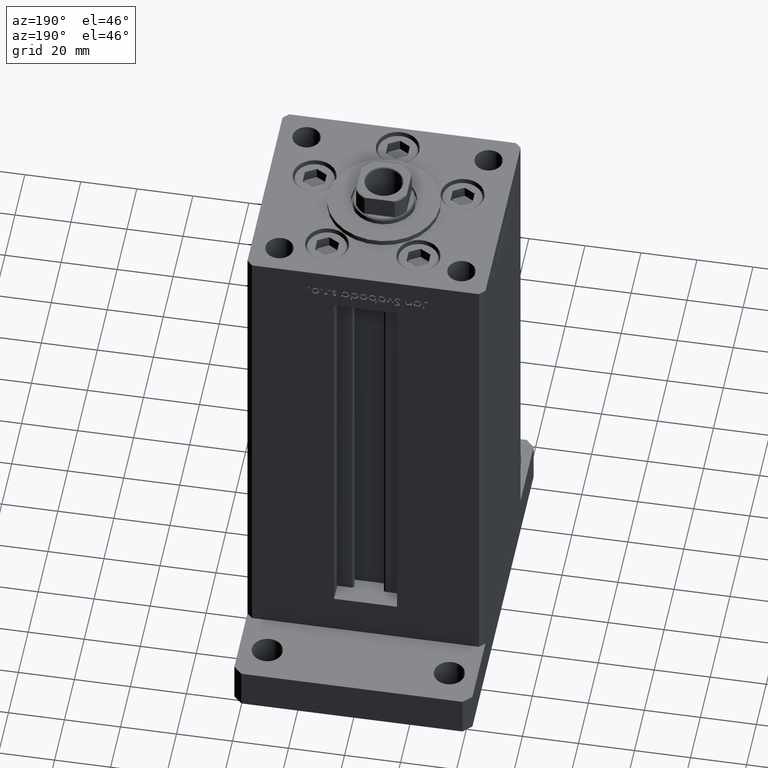
[diagram: clean part render]
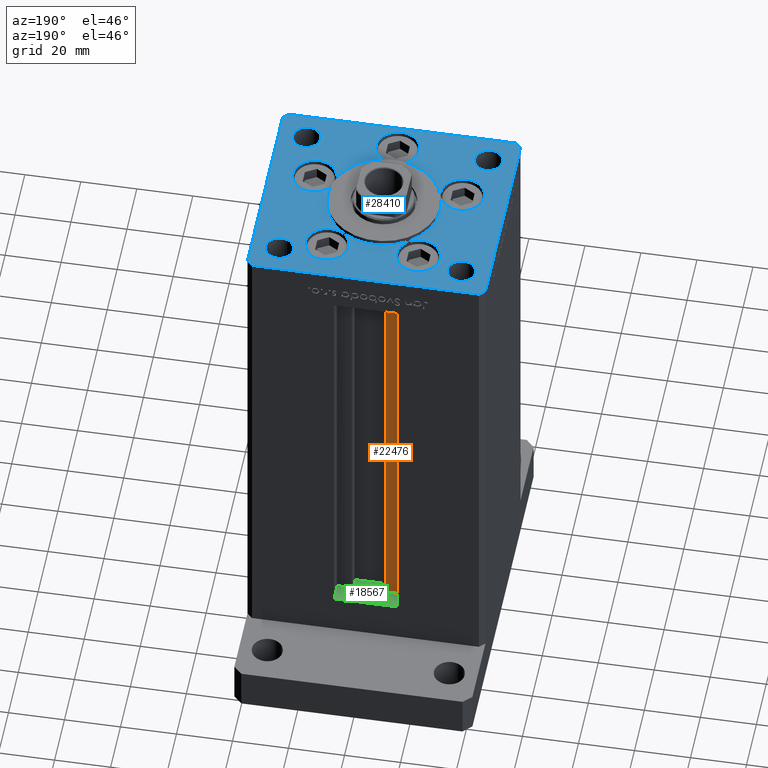
[diagram: same view with three faces highlighted in distinct colors, each labeled with its STEP entity id]
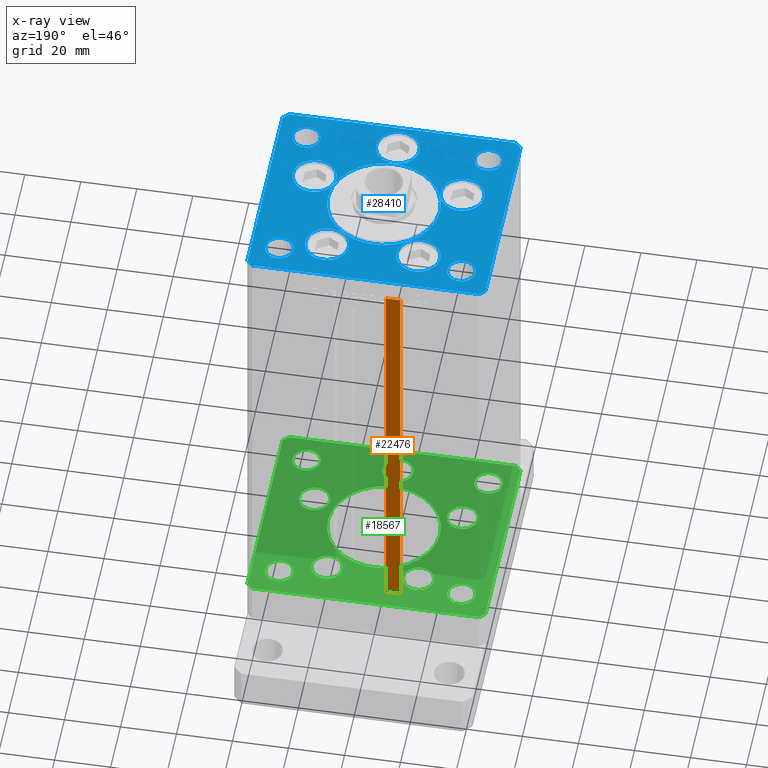
[diagram: x-ray of the same camera — body ghosted, the three highlighted faces saturated]
A machine part, auxiliary view with three faces highlighted in distinct colors.
The next image is the same camera in x-ray (body ghosted, the three faces saturated) — at least one of them is partly hidden behind the body in this view.
Their STEP definitions:

[orange] entity #22476 — the highlighted planar face has unit normal (0, -1, 0).
#835 = FACE_OUTER_BOUND ( 'NONE', #46362, .T. ) ;
#1094 = DIRECTION ( 'NONE',  ( 0.000000000000000000, 0.000000000000000000, -1.000000000000000000 ) ) ;
#2097 = DIRECTION ( 'NONE',  ( -0.000000000000000000, -0.000000000000000000, 1.000000000000000000 ) ) ;
#2497 = VECTOR ( 'NONE', #16606, 1000.000000000000000 ) ;
#3849 = EDGE_CURVE ( 'NONE', #27291, #21422, #7967, .T. ) ;
#4525 = CARTESIAN_POINT ( 'NONE',  ( -6.183333333333999704, 30.99999999999999289, 148.5000000000000000 ) ) ;
#5502 = VERTEX_POINT ( 'NONE', #45263 ) ;
#7967 = LINE ( 'NONE', #20645, #2497 ) ;
#8685 = CARTESIAN_POINT ( 'NONE',  ( -11.25000000000000000, 30.99999999999999289, 148.5000000000000000 ) ) ;
#8992 = LINE ( 'NONE', #41890, #36230 ) ;
#9378 = EDGE_CURVE ( 'NONE', #27291, #5502, #8992, .T. ) ;
#10717 = LINE ( 'NONE', #43079, #30172 ) ;
#16606 = DIRECTION ( 'NONE',  ( -0.000000000000000000, -0.000000000000000000, 1.000000000000000000 ) ) ;
#17851 = VECTOR ( 'NONE', #19787, 1000.000000000000000 ) ;
#19787 = DIRECTION ( 'NONE',  ( -1.000000000000000000, 0.000000000000000000, 0.000000000000000000 ) ) ;
#20645 = CARTESIAN_POINT ( 'NONE',  ( -11.25000000000000000, 30.99999999999999289, 0.000000000000000000 ) ) ;
#21422 = VERTEX_POINT ( 'NONE', #8685 ) ;
#21584 = CARTESIAN_POINT ( 'NONE',  ( -6.183333333333999704, 30.99999999999999289, 0.000000000000000000 ) ) ;
#22476 = ADVANCED_FACE ( 'NONE', ( #835 ), #29950, .F. ) ;
#22998 = ORIENTED_EDGE ( 'NONE', *, *, #47125, .F. ) ;
#24625 = LINE ( 'NONE', #48890, #17851 ) ;
#27291 = VERTEX_POINT ( 'NONE', #34514 ) ;
#28421 = ORIENTED_EDGE ( 'NONE', *, *, #33720, .F. ) ;
#29950 = PLANE ( 'NONE',  #34712 ) ;
#30172 = VECTOR ( 'NONE', #2097, 1000.000000000000000 ) ;
#33720 = EDGE_CURVE ( 'NONE', #35158, #21422, #24625, .T. ) ;
#33745 = DIRECTION ( 'NONE',  ( 0.000000000000000000, -1.000000000000000000, -0.000000000000000000 ) ) ;
#34514 = CARTESIAN_POINT ( 'NONE',  ( -11.25000000000000000, 30.99999999999999289, 0.000000000000000000 ) ) ;
#34712 = AXIS2_PLACEMENT_3D ( 'NONE', #21584, #33745, #1094 ) ;
#35158 = VERTEX_POINT ( 'NONE', #4525 ) ;
#36230 = VECTOR ( 'NONE', #50514, 1000.000000000000000 ) ;
#39250 = ORIENTED_EDGE ( 'NONE', *, *, #9378, .F. ) ;
#41300 = ORIENTED_EDGE ( 'NONE', *, *, #3849, .T. ) ;
#41890 = CARTESIAN_POINT ( 'NONE',  ( -6.183333333333999704, 30.99999999999999289, 0.000000000000000000 ) ) ;
#43079 = CARTESIAN_POINT ( 'NONE',  ( -6.183333333333999704, 30.99999999999999289, 0.000000000000000000 ) ) ;
#45263 = CARTESIAN_POINT ( 'NONE',  ( -6.183333333333999704, 30.99999999999999289, 0.000000000000000000 ) ) ;
#46362 = EDGE_LOOP ( 'NONE', ( #22998, #39250, #41300, #28421 ) ) ;
#47125 = EDGE_CURVE ( 'NONE', #5502, #35158, #10717, .T. ) ;
#48890 = CARTESIAN_POINT ( 'NONE',  ( 0.000000000000000000, 30.99999999999999289, 148.5000000000000000 ) ) ;
#50514 = DIRECTION ( 'NONE',  ( 1.000000000000000000, -0.000000000000000000, -0.000000000000000000 ) ) ;

[blue] entity #28410 — the highlighted planar face has unit normal (0, 0, 1).
#83 = EDGE_CURVE ( 'NONE', #5957, #25034, #34220, .T. ) ;
#97 = DIRECTION ( 'NONE',  ( 0.000000000000000000, 0.000000000000000000, 1.000000000000000000 ) ) ;
#128 = EDGE_CURVE ( 'NONE', #33916, #36391, #33102, .T. ) ;
#178 = FACE_BOUND ( 'NONE', #35177, .T. ) ;
#235 = DIRECTION ( 'NONE',  ( 1.000000000000000000, 0.000000000000000000, 0.000000000000000000 ) ) ;
#413 = DIRECTION ( 'NONE',  ( 1.000000000000000000, 0.000000000000000000, 0.000000000000000000 ) ) ;
#445 = FACE_BOUND ( 'NONE', #25544, .T. ) ;
#567 = VECTOR ( 'NONE', #46374, 1000.000000000000000 ) ;
#716 = FACE_BOUND ( 'NONE', #36961, .T. ) ;
#773 = EDGE_LOOP ( 'NONE', ( #14715, #3197 ) ) ;
#1286 = VERTEX_POINT ( 'NONE', #39361 ) ;
#1325 = CARTESIAN_POINT ( 'NONE',  ( 18.64865316429777664, -9.333333333333328596, 0.000000000000000000 ) ) ;
#1443 = CARTESIAN_POINT ( 'NONE',  ( -8.572913342905440715, 22.74999999999999289, 0.000000000000000000 ) ) ;
#1997 = CARTESIAN_POINT ( 'NONE',  ( -34.14865316429777664, -9.333333333333328596, 0.000000000000000000 ) ) ;
#2161 = ORIENTED_EDGE ( 'NONE', *, *, #49461, .F. ) ;
#2629 = EDGE_CURVE ( 'NONE', #34130, #30908, #11945, .T. ) ;
#2718 = VECTOR ( 'NONE', #28157, 1000.000000000000000 ) ;
#3119 = ORIENTED_EDGE ( 'NONE', *, *, #53276, .T. ) ;
#3197 = ORIENTED_EDGE ( 'NONE', *, *, #38219, .F. ) ;
#3304 = LINE ( 'NONE', #20018, #20281 ) ;
#3376 = DIRECTION ( 'NONE',  ( 0.000000000000000000, 0.000000000000000000, 1.000000000000000000 ) ) ;
#3524 = AXIS2_PLACEMENT_3D ( 'NONE', #28272, #44695, #33100 ) ;
#3686 = FACE_OUTER_BOUND ( 'NONE', #27632, .T. ) ;
#3825 = VERTEX_POINT ( 'NONE', #40617 ) ;
#4037 = EDGE_CURVE ( 'NONE', #16109, #43374, #9382, .T. ) ;
#4057 = AXIS2_PLACEMENT_3D ( 'NONE', #51006, #14064, #33056 ) ;
#4264 = ORIENTED_EDGE ( 'NONE', *, *, #4037, .F. ) ;
#4274 = DIRECTION ( 'NONE',  ( 0.000000000000000000, 0.000000000000000000, 1.000000000000000000 ) ) ;
#4371 = CIRCLE ( 'NONE', #3524, 5.000000000000000888 ) ;
#4399 = DIRECTION ( 'NONE',  ( 1.000000000000000000, 0.000000000000000000, 0.000000000000000000 ) ) ;
#4497 = DIRECTION ( 'NONE',  ( 0.7071067811865474617, 0.7071067811865474617, 0.000000000000000000 ) ) ;
#4620 = EDGE_CURVE ( 'NONE', #29550, #42673, #11130, .T. ) ;
#4751 = CARTESIAN_POINT ( 'NONE',  ( -42.50000000000000000, -35.50000000000004263, 0.000000000000000000 ) ) ;
#4767 = DIRECTION ( 'NONE',  ( 1.000000000000000000, 0.000000000000000000, 0.000000000000000000 ) ) ;
#5051 = DIRECTION ( 'NONE',  ( -0.7071067811865536790, -0.7071067811865414665, 0.000000000000000000 ) ) ;
#5080 = ORIENTED_EDGE ( 'NONE', *, *, #28700, .T. ) ;
#5287 = AXIS2_PLACEMENT_3D ( 'NONE', #8203, #24954, #12271 ) ;
#5297 = EDGE_CURVE ( 'NONE', #50561, #42218, #49042, .T. ) ;
#5431 = DIRECTION ( 'NONE',  ( -0.000000000000000000, -0.000000000000000000, -1.000000000000000000 ) ) ;
#5487 = EDGE_CURVE ( 'NONE', #16010, #39987, #32879, .T. ) ;
#5957 = VERTEX_POINT ( 'NONE', #1997 ) ;
#6057 = EDGE_LOOP ( 'NONE', ( #16229, #30840 ) ) ;
#6365 = CARTESIAN_POINT ( 'NONE',  ( -7.750000000000000000, -28.00000000000000000, 0.000000000000000000 ) ) ;
#6482 = AXIS2_PLACEMENT_3D ( 'NONE', #20394, #53291, #12318 ) ;
#6801 = ORIENTED_EDGE ( 'NONE', *, *, #34250, .T. ) ;
#6927 = DIRECTION ( 'NONE',  ( -0.000000000000000000, -0.000000000000000000, -1.000000000000000000 ) ) ;
#7382 = CIRCLE ( 'NONE', #9077, 4.999999999999997335 ) ;
#7410 = CIRCLE ( 'NONE', #37559, 7.750000000000000000 ) ;
#7431 = CARTESIAN_POINT ( 'NONE',  ( 16.32291334290544071, 22.74999999999999289, 0.000000000000000000 ) ) ;
#7904 = AXIS2_PLACEMENT_3D ( 'NONE', #39130, #5431, #26220 ) ;
#7984 = ORIENTED_EDGE ( 'NONE', *, *, #33008, .T. ) ;
#7990 = FACE_BOUND ( 'NONE', #6057, .T. ) ;
#8203 = CARTESIAN_POINT ( 'NONE',  ( -32.50000000000000000, -27.50000000000000355, 0.000000000000000000 ) ) ;
#8251 = FACE_BOUND ( 'NONE', #19655, .T. ) ;
#8383 = AXIS2_PLACEMENT_3D ( 'NONE', #29062, #28535, #4767 ) ;
#8525 = LINE ( 'NONE', #4751, #21131 ) ;
#8737 = DIRECTION ( 'NONE',  ( -0.000000000000000000, -0.000000000000000000, -1.000000000000000000 ) ) ;
#9077 = AXIS2_PLACEMENT_3D ( 'NONE', #52958, #8737, #20330 ) ;
#9175 = EDGE_CURVE ( 'NONE', #14220, #43221, #49157, .T. ) ;
#9205 = CARTESIAN_POINT ( 'NONE',  ( -18.64865316429777664, -9.333333333333330373, 0.000000000000000000 ) ) ;
#9214 = CIRCLE ( 'NONE', #4057, 20.00000000000000000 ) ;
#9322 = CARTESIAN_POINT ( 'NONE',  ( -20.00000000000000000, -6.938893903907228378E-15, 0.000000000000000000 ) ) ;
#9382 = CIRCLE ( 'NONE', #25785, 7.750000000000000000 ) ;
#10322 = DIRECTION ( 'NONE',  ( 1.000000000000000000, 0.000000000000000000, 0.000000000000000000 ) ) ;
#10523 = CARTESIAN_POINT ( 'NONE',  ( -27.50000000000000000, 27.50000000000000711, 0.000000000000000000 ) ) ;
#10547 = CARTESIAN_POINT ( 'NONE',  ( 26.39865316429777664, -9.333333333333330373, 0.000000000000000000 ) ) ;
#11130 = CIRCLE ( 'NONE', #44734, 4.999999999999997335 ) ;
#11296 = ORIENTED_EDGE ( 'NONE', *, *, #28404, .T. ) ;
#11474 = CARTESIAN_POINT ( 'NONE',  ( 0.000000000000000000, -6.938893903907228378E-15, 0.000000000000000000 ) ) ;
#11945 = CIRCLE ( 'NONE', #17935, 7.750000000000000000 ) ;
#12119 = ORIENTED_EDGE ( 'NONE', *, *, #46850, .T. ) ;
#12212 = EDGE_CURVE ( 'NONE', #14063, #44067, #50094, .T. ) ;
#12271 = DIRECTION ( 'NONE',  ( 1.000000000000000000, 0.000000000000000000, 0.000000000000000000 ) ) ;
#12318 = DIRECTION ( 'NONE',  ( 1.000000000000000000, 0.000000000000000000, 0.000000000000000000 ) ) ;
#12440 = CARTESIAN_POINT ( 'NONE',  ( 16.32291334290544071, 22.74999999999999289, 0.000000000000000000 ) ) ;
#12919 = ORIENTED_EDGE ( 'NONE', *, *, #12212, .T. ) ;
#13656 = AXIS2_PLACEMENT_3D ( 'NONE', #17564, #17296, #34014 ) ;
#13671 = CARTESIAN_POINT ( 'NONE',  ( -42.50000000000000711, 35.50000000000000000, 0.000000000000000000 ) ) ;
#13801 = DIRECTION ( 'NONE',  ( 1.000000000000000000, 0.000000000000000000, 0.000000000000000000 ) ) ;
#14063 = VERTEX_POINT ( 'NONE', #36017 ) ;
#14064 = DIRECTION ( 'NONE',  ( 0.000000000000000000, 0.000000000000000000, 1.000000000000000000 ) ) ;
#14220 = VERTEX_POINT ( 'NONE', #1443 ) ;
#14262 = CARTESIAN_POINT ( 'NONE',  ( 32.50000000000000000, 27.49999999999999645, 0.000000000000000000 ) ) ;
#14715 = ORIENTED_EDGE ( 'NONE', *, *, #5297, .F. ) ;
#14746 = CARTESIAN_POINT ( 'NONE',  ( -42.50000000000000000, -35.50000000000004263, 0.000000000000000000 ) ) ;
#15189 = CARTESIAN_POINT ( 'NONE',  ( -24.07291334290544071, 22.74999999999999289, 0.000000000000000000 ) ) ;
#15692 = VERTEX_POINT ( 'NONE', #46102 ) ;
#15848 = CARTESIAN_POINT ( 'NONE',  ( 20.00000000000000000, -4.489600305612522259E-15, 0.000000000000000000 ) ) ;
#16002 = CARTESIAN_POINT ( 'NONE',  ( -27.50000000000000000, -27.50000000000000355, 0.000000000000000000 ) ) ;
#16010 = VERTEX_POINT ( 'NONE', #13671 ) ;
#16049 = CARTESIAN_POINT ( 'NONE',  ( -40.50000000000000000, 37.49999999999997158, 0.000000000000000000 ) ) ;
#16109 = VERTEX_POINT ( 'NONE', #6365 ) ;
#16123 = CIRCLE ( 'NONE', #42821, 7.750000000000000000 ) ;
#16229 = ORIENTED_EDGE ( 'NONE', *, *, #9175, .F. ) ;
#16306 = DIRECTION ( 'NONE',  ( 1.000000000000000000, 0.000000000000000000, 0.000000000000000000 ) ) ;
#17069 = EDGE_CURVE ( 'NONE', #25034, #5957, #37176, .T. ) ;
#17106 = CARTESIAN_POINT ( 'NONE',  ( 37.50000000000000000, 27.49999999999999645, 0.000000000000000000 ) ) ;
#17141 = EDGE_LOOP ( 'NONE', ( #33545, #4264 ) ) ;
#17296 = DIRECTION ( 'NONE',  ( 0.000000000000000000, 0.000000000000000000, 1.000000000000000000 ) ) ;
#17564 = CARTESIAN_POINT ( 'NONE',  ( 0.000000000000000000, -28.00000000000000000, 0.000000000000000000 ) ) ;
#17935 = AXIS2_PLACEMENT_3D ( 'NONE', #21940, #26797, #10322 ) ;
#18289 = CARTESIAN_POINT ( 'NONE',  ( -26.39865316429777664, -9.333333333333330373, 0.000000000000000000 ) ) ;
#19069 = DIRECTION ( 'NONE',  ( -1.000000000000000000, 0.000000000000000000, 0.000000000000000000 ) ) ;
#19603 = ORIENTED_EDGE ( 'NONE', *, *, #5487, .T. ) ;
#19655 = EDGE_LOOP ( 'NONE', ( #2161, #47193 ) ) ;
#20018 = CARTESIAN_POINT ( 'NONE',  ( 42.50000000000000711, -35.49999999999992895, 0.000000000000000000 ) ) ;
#20145 = FACE_BOUND ( 'NONE', #17141, .T. ) ;
#20281 = VECTOR ( 'NONE', #32177, 1000.000000000000000 ) ;
#20330 = DIRECTION ( 'NONE',  ( -1.000000000000000000, 0.000000000000000000, 0.000000000000000000 ) ) ;
#20394 = CARTESIAN_POINT ( 'NONE',  ( 0.000000000000000000, 0.000000000000000000, 0.000000000000000000 ) ) ;
#20409 = EDGE_LOOP ( 'NONE', ( #50788, #39104 ) ) ;
#20456 = CARTESIAN_POINT ( 'NONE',  ( -16.32291334290544071, 22.74999999999999289, 0.000000000000000000 ) ) ;
#20460 = AXIS2_PLACEMENT_3D ( 'NONE', #14262, #40147, #35027 ) ;
#20828 = CARTESIAN_POINT ( 'NONE',  ( 7.750000000000000000, -28.00000000000000000, 0.000000000000000000 ) ) ;
#20829 = AXIS2_PLACEMENT_3D ( 'NONE', #18289, #34736, #51179 ) ;
#20974 = LINE ( 'NONE', #24498, #50569 ) ;
#21131 = VECTOR ( 'NONE', #37114, 1000.000000000000000 ) ;
#21735 = CARTESIAN_POINT ( 'NONE',  ( 40.50000000000000711, 37.50000000000000711, 0.000000000000000000 ) ) ;
#21821 = ORIENTED_EDGE ( 'NONE', *, *, #44598, .F. ) ;
#21940 = CARTESIAN_POINT ( 'NONE',  ( 26.39865316429777664, -9.333333333333330373, 0.000000000000000000 ) ) ;
#22958 = DIRECTION ( 'NONE',  ( 0.000000000000000000, 0.000000000000000000, 1.000000000000000000 ) ) ;
#23125 = CARTESIAN_POINT ( 'NONE',  ( -32.50000000000000000, 27.50000000000000711, 0.000000000000000000 ) ) ;
#23853 = CARTESIAN_POINT ( 'NONE',  ( 0.000000000000000000, -28.00000000000000000, 0.000000000000000000 ) ) ;
#24169 = DIRECTION ( 'NONE',  ( 1.000000000000000000, 0.000000000000000000, 0.000000000000000000 ) ) ;
#24498 = CARTESIAN_POINT ( 'NONE',  ( -40.50000000000000000, 37.49999999999997158, 0.000000000000000000 ) ) ;
#24510 = DIRECTION ( 'NONE',  ( 1.000000000000000000, 0.000000000000000000, 0.000000000000000000 ) ) ;
#24954 = DIRECTION ( 'NONE',  ( 0.000000000000000000, 0.000000000000000000, 1.000000000000000000 ) ) ;
#25034 = VERTEX_POINT ( 'NONE', #9205 ) ;
#25325 = EDGE_LOOP ( 'NONE', ( #12119, #12919 ) ) ;
#25544 = EDGE_LOOP ( 'NONE', ( #30672, #51716 ) ) ;
#25785 = AXIS2_PLACEMENT_3D ( 'NONE', #23853, #97, #4399 ) ;
#26220 = DIRECTION ( 'NONE',  ( -1.000000000000000000, 0.000000000000000000, 0.000000000000000000 ) ) ;
#26499 = VERTEX_POINT ( 'NONE', #16002 ) ;
#26744 = DIRECTION ( 'NONE',  ( -1.000000000000000000, -4.283267841918041508E-16, 0.000000000000000000 ) ) ;
#26766 = AXIS2_PLACEMENT_3D ( 'NONE', #20456, #4274, #235 ) ;
#26797 = DIRECTION ( 'NONE',  ( 0.000000000000000000, 0.000000000000000000, 1.000000000000000000 ) ) ;
#27378 = CIRCLE ( 'NONE', #20460, 4.999999999999997335 ) ;
#27632 = EDGE_LOOP ( 'NONE', ( #11296, #3119, #34311, #38707, #47128, #7984, #6801, #19603 ) ) ;
#28157 = DIRECTION ( 'NONE',  ( -0.7071067811865524577, 0.7071067811865426878, 0.000000000000000000 ) ) ;
#28272 = CARTESIAN_POINT ( 'NONE',  ( -32.50000000000000000, -27.50000000000000355, 0.000000000000000000 ) ) ;
#28404 = EDGE_CURVE ( 'NONE', #39987, #15692, #8525, .T. ) ;
#28410 = ADVANCED_FACE ( 'NONE', ( #716, #7990, #40642, #53020, #20145, #445, #28516, #44947, #8251, #3686, #178 ), #36844, .T. ) ;
#28468 = VERTEX_POINT ( 'NONE', #21735 ) ;
#28516 = FACE_BOUND ( 'NONE', #25325, .T. ) ;
#28535 = DIRECTION ( 'NONE',  ( 0.000000000000000000, 0.000000000000000000, 1.000000000000000000 ) ) ;
#28700 = EDGE_CURVE ( 'NONE', #47638, #1286, #7382, .T. ) ;
#28987 = EDGE_CURVE ( 'NONE', #36391, #3825, #3304, .T. ) ;
#29062 = CARTESIAN_POINT ( 'NONE',  ( -26.39865316429777664, -9.333333333333330373, 0.000000000000000000 ) ) ;
#29550 = VERTEX_POINT ( 'NONE', #17106 ) ;
#29920 = VECTOR ( 'NONE', #4497, 1000.000000000000114 ) ;
#29995 = LINE ( 'NONE', #47491, #43644 ) ;
#30672 = ORIENTED_EDGE ( 'NONE', *, *, #17069, .F. ) ;
#30840 = ORIENTED_EDGE ( 'NONE', *, *, #52612, .F. ) ;
#30908 = VERTEX_POINT ( 'NONE', #51826 ) ;
#31404 = CARTESIAN_POINT ( 'NONE',  ( -37.50000000000000711, -27.50000000000000355, 0.000000000000000000 ) ) ;
#32177 = DIRECTION ( 'NONE',  ( 9.773090005503145261E-17, 1.000000000000000000, 0.000000000000000000 ) ) ;
#32364 = CARTESIAN_POINT ( 'NONE',  ( -32.50000000000000000, 27.50000000000000711, 0.000000000000000000 ) ) ;
#32879 = LINE ( 'NONE', #44741, #40425 ) ;
#33008 = EDGE_CURVE ( 'NONE', #28468, #45616, #29995, .T. ) ;
#33056 = DIRECTION ( 'NONE',  ( 1.000000000000000000, 0.000000000000000000, 0.000000000000000000 ) ) ;
#33100 = DIRECTION ( 'NONE',  ( 1.000000000000000000, 0.000000000000000000, 0.000000000000000000 ) ) ;
#33102 = LINE ( 'NONE', #53306, #29920 ) ;
#33545 = ORIENTED_EDGE ( 'NONE', *, *, #41423, .F. ) ;
#33916 = VERTEX_POINT ( 'NONE', #42641 ) ;
#33958 = EDGE_CURVE ( 'NONE', #30908, #34130, #16123, .T. ) ;
#34014 = DIRECTION ( 'NONE',  ( 1.000000000000000000, 0.000000000000000000, 0.000000000000000000 ) ) ;
#34130 = VERTEX_POINT ( 'NONE', #1325 ) ;
#34220 = CIRCLE ( 'NONE', #8383, 7.750000000000000000 ) ;
#34250 = EDGE_CURVE ( 'NONE', #45616, #16010, #20974, .T. ) ;
#34311 = ORIENTED_EDGE ( 'NONE', *, *, #128, .T. ) ;
#34474 = AXIS2_PLACEMENT_3D ( 'NONE', #32364, #48071, #52579 ) ;
#34549 = CIRCLE ( 'NONE', #5287, 5.000000000000000888 ) ;
#34600 = AXIS2_PLACEMENT_3D ( 'NONE', #23125, #6927, #19069 ) ;
#34736 = DIRECTION ( 'NONE',  ( 0.000000000000000000, 0.000000000000000000, 1.000000000000000000 ) ) ;
#35027 = DIRECTION ( 'NONE',  ( 1.000000000000000000, 0.000000000000000000, 0.000000000000000000 ) ) ;
#35177 = EDGE_LOOP ( 'NONE', ( #5080, #41388 ) ) ;
#35667 = CARTESIAN_POINT ( 'NONE',  ( 8.572913342905442491, 22.74999999999999289, 0.000000000000000000 ) ) ;
#36017 = CARTESIAN_POINT ( 'NONE',  ( -37.50000000000000711, 27.50000000000000711, 0.000000000000000000 ) ) ;
#36140 = AXIS2_PLACEMENT_3D ( 'NONE', #11474, #3376, #16306 ) ;
#36225 = CARTESIAN_POINT ( 'NONE',  ( 42.50000000000001421, 35.50000000000002132, 0.000000000000000000 ) ) ;
#36391 = VERTEX_POINT ( 'NONE', #37111 ) ;
#36636 = CARTESIAN_POINT ( 'NONE',  ( 32.50000000000000000, 27.49999999999999645, 0.000000000000000000 ) ) ;
#36844 = PLANE ( 'NONE',  #6482 ) ;
#36897 = DIRECTION ( 'NONE',  ( 0.000000000000000000, 0.000000000000000000, 1.000000000000000000 ) ) ;
#36961 = EDGE_LOOP ( 'NONE', ( #39356, #21821 ) ) ;
#37106 = VERTEX_POINT ( 'NONE', #15848 ) ;
#37111 = CARTESIAN_POINT ( 'NONE',  ( 42.50000000000000711, -35.49999999999992895, 0.000000000000000000 ) ) ;
#37114 = DIRECTION ( 'NONE',  ( 0.7071067811865487940, -0.7071067811865463515, 0.000000000000000000 ) ) ;
#37176 = CIRCLE ( 'NONE', #20829, 7.750000000000000000 ) ;
#37349 = DIRECTION ( 'NONE',  ( 0.000000000000000000, 0.000000000000000000, 1.000000000000000000 ) ) ;
#37433 = ORIENTED_EDGE ( 'NONE', *, *, #2629, .F. ) ;
#37559 = AXIS2_PLACEMENT_3D ( 'NONE', #41397, #37349, #413 ) ;
#38219 = EDGE_CURVE ( 'NONE', #42218, #50561, #44531, .T. ) ;
#38422 = EDGE_CURVE ( 'NONE', #41714, #37106, #9214, .T. ) ;
#38534 = LINE ( 'NONE', #42059, #567 ) ;
#38707 = ORIENTED_EDGE ( 'NONE', *, *, #28987, .T. ) ;
#38844 = EDGE_CURVE ( 'NONE', #42673, #29550, #27378, .T. ) ;
#39104 = ORIENTED_EDGE ( 'NONE', *, *, #38844, .F. ) ;
#39130 = CARTESIAN_POINT ( 'NONE',  ( 32.50000000000000000, -27.50000000000000355, 0.000000000000000000 ) ) ;
#39356 = ORIENTED_EDGE ( 'NONE', *, *, #38422, .F. ) ;
#39361 = CARTESIAN_POINT ( 'NONE',  ( 27.50000000000000355, -27.50000000000000355, 0.000000000000000000 ) ) ;
#39642 = CIRCLE ( 'NONE', #34474, 5.000000000000004441 ) ;
#39987 = VERTEX_POINT ( 'NONE', #14746 ) ;
#40147 = DIRECTION ( 'NONE',  ( 0.000000000000000000, 0.000000000000000000, 1.000000000000000000 ) ) ;
#40425 = VECTOR ( 'NONE', #48271, 1000.000000000000000 ) ;
#40617 = CARTESIAN_POINT ( 'NONE',  ( 42.50000000000001421, 35.50000000000002132, 0.000000000000000000 ) ) ;
#40639 = CIRCLE ( 'NONE', #7904, 4.999999999999997335 ) ;
#40642 = FACE_BOUND ( 'NONE', #773, .T. ) ;
#40755 = DIRECTION ( 'NONE',  ( 1.000000000000000000, 0.000000000000000000, 0.000000000000000000 ) ) ;
#41292 = DIRECTION ( 'NONE',  ( 0.000000000000000000, 0.000000000000000000, 1.000000000000000000 ) ) ;
#41388 = ORIENTED_EDGE ( 'NONE', *, *, #50592, .T. ) ;
#41397 = CARTESIAN_POINT ( 'NONE',  ( -16.32291334290544071, 22.74999999999999289, 0.000000000000000000 ) ) ;
#41423 = EDGE_CURVE ( 'NONE', #43374, #16109, #47176, .T. ) ;
#41714 = VERTEX_POINT ( 'NONE', #9322 ) ;
#42059 = CARTESIAN_POINT ( 'NONE',  ( -40.50000000000000711, -37.50000000000003553, 0.000000000000000000 ) ) ;
#42218 = VERTEX_POINT ( 'NONE', #35667 ) ;
#42641 = CARTESIAN_POINT ( 'NONE',  ( 40.50000000000001421, -37.49999999999992184, 0.000000000000000000 ) ) ;
#42673 = VERTEX_POINT ( 'NONE', #48289 ) ;
#42821 = AXIS2_PLACEMENT_3D ( 'NONE', #10547, #22958, #13801 ) ;
#43221 = VERTEX_POINT ( 'NONE', #15189 ) ;
#43374 = VERTEX_POINT ( 'NONE', #20828 ) ;
#43644 = VECTOR ( 'NONE', #26744, 1000.000000000000000 ) ;
#43663 = EDGE_LOOP ( 'NONE', ( #47542, #37433 ) ) ;
#44067 = VERTEX_POINT ( 'NONE', #10523 ) ;
#44325 = LINE ( 'NONE', #36225, #2718 ) ;
#44531 = CIRCLE ( 'NONE', #51401, 7.750000000000000000 ) ;
#44598 = EDGE_CURVE ( 'NONE', #37106, #41714, #45610, .T. ) ;
#44695 = DIRECTION ( 'NONE',  ( 0.000000000000000000, 0.000000000000000000, 1.000000000000000000 ) ) ;
#44734 = AXIS2_PLACEMENT_3D ( 'NONE', #36636, #36897, #24510 ) ;
#44741 = CARTESIAN_POINT ( 'NONE',  ( -42.50000000000000711, 35.50000000000000000, 0.000000000000000000 ) ) ;
#44947 = FACE_BOUND ( 'NONE', #20409, .T. ) ;
#45610 = CIRCLE ( 'NONE', #36140, 20.00000000000000000 ) ;
#45616 = VERTEX_POINT ( 'NONE', #16049 ) ;
#46102 = CARTESIAN_POINT ( 'NONE',  ( -40.50000000000000711, -37.50000000000003553, 0.000000000000000000 ) ) ;
#46374 = DIRECTION ( 'NONE',  ( 1.000000000000000000, 1.370645709413773283E-15, 0.000000000000000000 ) ) ;
#46850 = EDGE_CURVE ( 'NONE', #44067, #14063, #39642, .T. ) ;
#47128 = ORIENTED_EDGE ( 'NONE', *, *, #50489, .T. ) ;
#47176 = CIRCLE ( 'NONE', #13656, 7.750000000000000000 ) ;
#47193 = ORIENTED_EDGE ( 'NONE', *, *, #48172, .F. ) ;
#47310 = AXIS2_PLACEMENT_3D ( 'NONE', #12440, #41292, #40755 ) ;
#47491 = CARTESIAN_POINT ( 'NONE',  ( 40.50000000000000711, 37.50000000000000711, 0.000000000000000000 ) ) ;
#47542 = ORIENTED_EDGE ( 'NONE', *, *, #33958, .F. ) ;
#47638 = VERTEX_POINT ( 'NONE', #49462 ) ;
#48071 = DIRECTION ( 'NONE',  ( -0.000000000000000000, -0.000000000000000000, -1.000000000000000000 ) ) ;
#48172 = EDGE_CURVE ( 'NONE', #52775, #26499, #4371, .T. ) ;
#48271 = DIRECTION ( 'NONE',  ( 9.773090005503134168E-17, -1.000000000000000000, 0.000000000000000000 ) ) ;
#48289 = CARTESIAN_POINT ( 'NONE',  ( 27.50000000000000355, 27.49999999999999645, 0.000000000000000000 ) ) ;
#48699 = DIRECTION ( 'NONE',  ( 0.000000000000000000, 0.000000000000000000, 1.000000000000000000 ) ) ;
#49042 = CIRCLE ( 'NONE', #47310, 7.750000000000000000 ) ;
#49157 = CIRCLE ( 'NONE', #26766, 7.750000000000000000 ) ;
#49461 = EDGE_CURVE ( 'NONE', #26499, #52775, #34549, .T. ) ;
#49462 = CARTESIAN_POINT ( 'NONE',  ( 37.50000000000000000, -27.50000000000000355, 0.000000000000000000 ) ) ;
#49687 = CARTESIAN_POINT ( 'NONE',  ( 24.07291334290544071, 22.74999999999999289, 0.000000000000000000 ) ) ;
#50094 = CIRCLE ( 'NONE', #34600, 5.000000000000004441 ) ;
#50489 = EDGE_CURVE ( 'NONE', #3825, #28468, #44325, .T. ) ;
#50561 = VERTEX_POINT ( 'NONE', #49687 ) ;
#50569 = VECTOR ( 'NONE', #5051, 1000.000000000000000 ) ;
#50592 = EDGE_CURVE ( 'NONE', #1286, #47638, #40639, .T. ) ;
#50788 = ORIENTED_EDGE ( 'NONE', *, *, #4620, .F. ) ;
#51006 = CARTESIAN_POINT ( 'NONE',  ( 0.000000000000000000, -6.938893903907228378E-15, 0.000000000000000000 ) ) ;
#51179 = DIRECTION ( 'NONE',  ( 1.000000000000000000, 0.000000000000000000, 0.000000000000000000 ) ) ;
#51401 = AXIS2_PLACEMENT_3D ( 'NONE', #7431, #48699, #24169 ) ;
#51716 = ORIENTED_EDGE ( 'NONE', *, *, #83, .F. ) ;
#51826 = CARTESIAN_POINT ( 'NONE',  ( 34.14865316429777664, -9.333333333333330373, 0.000000000000000000 ) ) ;
#52579 = DIRECTION ( 'NONE',  ( -1.000000000000000000, 0.000000000000000000, 0.000000000000000000 ) ) ;
#52612 = EDGE_CURVE ( 'NONE', #43221, #14220, #7410, .T. ) ;
#52775 = VERTEX_POINT ( 'NONE', #31404 ) ;
#52958 = CARTESIAN_POINT ( 'NONE',  ( 32.50000000000000000, -27.50000000000000355, 0.000000000000000000 ) ) ;
#53020 = FACE_BOUND ( 'NONE', #43663, .T. ) ;
#53276 = EDGE_CURVE ( 'NONE', #15692, #33916, #38534, .T. ) ;
#53291 = DIRECTION ( 'NONE',  ( -0.000000000000000000, 0.000000000000000000, 1.000000000000000000 ) ) ;
#53306 = CARTESIAN_POINT ( 'NONE',  ( 40.50000000000001421, -37.49999999999992184, 0.000000000000000000 ) ) ;

[green] entity #18567 — the highlighted planar face has unit normal (0, 0, -1).
#88 = DIRECTION ( 'NONE',  ( -1.000000000000000000, 0.000000000000000000, 0.000000000000000000 ) ) ;
#204 = VERTEX_POINT ( 'NONE', #50083 ) ;
#389 = ORIENTED_EDGE ( 'NONE', *, *, #31006, .F. ) ;
#522 = CARTESIAN_POINT ( 'NONE',  ( -16.32291334290543006, 22.74999999999999645, -15.00000000000000000 ) ) ;
#619 = DIRECTION ( 'NONE',  ( 0.000000000000000000, -0.000000000000000000, -1.000000000000000000 ) ) ;
#724 = EDGE_CURVE ( 'NONE', #3373, #22227, #13018, .T. ) ;
#864 = CARTESIAN_POINT ( 'NONE',  ( 32.50000000000000000, -27.49999999999999645, -15.00000000000000000 ) ) ;
#1130 = CARTESIAN_POINT ( 'NONE',  ( 42.49999999999992895, 35.50000000000000000, -15.00000000000000000 ) ) ;
#1156 = AXIS2_PLACEMENT_3D ( 'NONE', #7235, #28547, #44197 ) ;
#1660 = CARTESIAN_POINT ( 'NONE',  ( -32.50000000000000000, 27.50000000000000355, -15.00000000000000000 ) ) ;
#1778 = VERTEX_POINT ( 'NONE', #40768 ) ;
#1815 = ORIENTED_EDGE ( 'NONE', *, *, #2069, .T. ) ;
#2069 = EDGE_CURVE ( 'NONE', #9620, #35711, #18826, .T. ) ;
#2085 = DIRECTION ( 'NONE',  ( 0.000000000000000000, -0.000000000000000000, -1.000000000000000000 ) ) ;
#2474 = VERTEX_POINT ( 'NONE', #48155 ) ;
#2908 = ORIENTED_EDGE ( 'NONE', *, *, #38596, .F. ) ;
#3306 = CIRCLE ( 'NONE', #6717, 5.499999999999998224 ) ;
#3373 = VERTEX_POINT ( 'NONE', #31338 ) ;
#3850 = EDGE_CURVE ( 'NONE', #44213, #44351, #32666, .T. ) ;
#4074 = VERTEX_POINT ( 'NONE', #53204 ) ;
#4090 = ORIENTED_EDGE ( 'NONE', *, *, #52970, .F. ) ;
#4834 = CIRCLE ( 'NONE', #51325, 5.499999999999998224 ) ;
#4838 = AXIS2_PLACEMENT_3D ( 'NONE', #33622, #33349, #33080 ) ;
#4988 = EDGE_CURVE ( 'NONE', #10072, #14410, #30961, .T. ) ;
#5161 = VERTEX_POINT ( 'NONE', #21125 ) ;
#5432 = EDGE_LOOP ( 'NONE', ( #29574, #30940 ) ) ;
#5443 = CARTESIAN_POINT ( 'NONE',  ( 42.50000000000000711, -35.50000000000000000, -15.00000000000000000 ) ) ;
#5779 = AXIS2_PLACEMENT_3D ( 'NONE', #1660, #14868, #10004 ) ;
#5881 = ORIENTED_EDGE ( 'NONE', *, *, #6254, .T. ) ;
#6254 = EDGE_CURVE ( 'NONE', #35711, #9620, #6890, .T. ) ;
#6282 = ORIENTED_EDGE ( 'NONE', *, *, #31688, .F. ) ;
#6650 = CARTESIAN_POINT ( 'NONE',  ( 26.39865316429776954, -9.333333333333330373, -15.00000000000000000 ) ) ;
#6691 = VECTOR ( 'NONE', #49957, 1000.000000000000114 ) ;
#6717 = AXIS2_PLACEMENT_3D ( 'NONE', #9376, #21529, #10169 ) ;
#6890 = CIRCLE ( 'NONE', #14626, 4.999999999999997335 ) ;
#6959 = LINE ( 'NONE', #30981, #30984 ) ;
#6966 = FACE_BOUND ( 'NONE', #46297, .T. ) ;
#7059 = EDGE_CURVE ( 'NONE', #8631, #20563, #32464, .T. ) ;
#7141 = EDGE_CURVE ( 'NONE', #2474, #3373, #34575, .T. ) ;
#7235 = CARTESIAN_POINT ( 'NONE',  ( 0.000000000000000000, 0.000000000000000000, -15.00000000000000000 ) ) ;
#7756 = FACE_BOUND ( 'NONE', #47227, .T. ) ;
#7802 = CARTESIAN_POINT ( 'NONE',  ( 32.50000000000000000, 27.49999999999999645, -15.00000000000000000 ) ) ;
#7844 = AXIS2_PLACEMENT_3D ( 'NONE', #864, #17308, #13521 ) ;
#7917 = CIRCLE ( 'NONE', #8777, 5.500000000000000000 ) ;
#8218 = VECTOR ( 'NONE', #15531, 1000.000000000000114 ) ;
#8243 = VERTEX_POINT ( 'NONE', #15368 ) ;
#8254 = DIRECTION ( 'NONE',  ( 1.000000000000000000, 0.000000000000000000, 0.000000000000000000 ) ) ;
#8366 = VECTOR ( 'NONE', #21040, 1000.000000000000000 ) ;
#8631 = VERTEX_POINT ( 'NONE', #12503 ) ;
#8703 = CIRCLE ( 'NONE', #15612, 5.500000000000000000 ) ;
#8777 = AXIS2_PLACEMENT_3D ( 'NONE', #32823, #41437, #8254 ) ;
#9376 = CARTESIAN_POINT ( 'NONE',  ( -26.39865316429776954, -9.333333333333337478, -15.00000000000000000 ) ) ;
#9620 = VERTEX_POINT ( 'NONE', #28917 ) ;
#9862 = EDGE_LOOP ( 'NONE', ( #1815, #5881 ) ) ;
#10004 = DIRECTION ( 'NONE',  ( 1.000000000000000000, 0.000000000000000000, 0.000000000000000000 ) ) ;
#10072 = VERTEX_POINT ( 'NONE', #35534 ) ;
#10169 = DIRECTION ( 'NONE',  ( 1.000000000000000000, 0.000000000000000000, 0.000000000000000000 ) ) ;
#10372 = ORIENTED_EDGE ( 'NONE', *, *, #45142, .F. ) ;
#10563 = EDGE_CURVE ( 'NONE', #204, #14698, #35415, .T. ) ;
#10782 = ORIENTED_EDGE ( 'NONE', *, *, #36127, .F. ) ;
#10896 = EDGE_CURVE ( 'NONE', #4074, #41637, #8703, .T. ) ;
#11810 = AXIS2_PLACEMENT_3D ( 'NONE', #28224, #32792, #52484 ) ;
#11958 = DIRECTION ( 'NONE',  ( 1.000000000000000000, 0.000000000000000000, 0.000000000000000000 ) ) ;
#11966 = CARTESIAN_POINT ( 'NONE',  ( -42.50000000000000000, -35.50000000000000711, -15.00000000000000000 ) ) ;
#12339 = DIRECTION ( 'NONE',  ( 0.000000000000000000, -0.000000000000000000, -1.000000000000000000 ) ) ;
#12503 = CARTESIAN_POINT ( 'NONE',  ( -42.50000000000000000, -35.50000000000000711, -15.00000000000000000 ) ) ;
#12790 = ORIENTED_EDGE ( 'NONE', *, *, #10896, .F. ) ;
#12971 = EDGE_CURVE ( 'NONE', #16621, #30647, #7917, .T. ) ;
#13018 = LINE ( 'NONE', #1130, #6691 ) ;
#13201 = DIRECTION ( 'NONE',  ( 0.000000000000000000, -0.000000000000000000, -1.000000000000000000 ) ) ;
#13364 = CIRCLE ( 'NONE', #44352, 5.499999999999998224 ) ;
#13441 = VERTEX_POINT ( 'NONE', #35131 ) ;
#13521 = DIRECTION ( 'NONE',  ( -1.000000000000000000, 0.000000000000000000, 0.000000000000000000 ) ) ;
#14001 = ORIENTED_EDGE ( 'NONE', *, *, #12971, .F. ) ;
#14092 = EDGE_LOOP ( 'NONE', ( #49023, #50585 ) ) ;
#14181 = ORIENTED_EDGE ( 'NONE', *, *, #20458, .F. ) ;
#14373 = CIRCLE ( 'NONE', #11810, 20.00000000000000000 ) ;
#14410 = VERTEX_POINT ( 'NONE', #47817 ) ;
#14469 = EDGE_LOOP ( 'NONE', ( #34862, #10782 ) ) ;
#14503 = DIRECTION ( 'NONE',  ( 9.773090005503140331E-17, -1.000000000000000000, 0.000000000000000000 ) ) ;
#14626 = AXIS2_PLACEMENT_3D ( 'NONE', #17061, #17852, #45918 ) ;
#14698 = VERTEX_POINT ( 'NONE', #35881 ) ;
#14797 = CARTESIAN_POINT ( 'NONE',  ( 16.32291334290542295, 22.75000000000000000, -15.00000000000000000 ) ) ;
#14868 = DIRECTION ( 'NONE',  ( 0.000000000000000000, 0.000000000000000000, 1.000000000000000000 ) ) ;
#15258 = CARTESIAN_POINT ( 'NONE',  ( 40.50000000000000000, -37.50000000000000711, -15.00000000000000000 ) ) ;
#15368 = CARTESIAN_POINT ( 'NONE',  ( -20.00000000000000000, 2.449293598294706513E-15, -15.00000000000000000 ) ) ;
#15531 = DIRECTION ( 'NONE',  ( 0.7071067811865474617, 0.7071067811865474617, 0.000000000000000000 ) ) ;
#15612 = AXIS2_PLACEMENT_3D ( 'NONE', #522, #13201, #16707 ) ;
#15838 = EDGE_CURVE ( 'NONE', #5161, #49939, #19092, .T. ) ;
#15870 = FACE_BOUND ( 'NONE', #52947, .T. ) ;
#16119 = VECTOR ( 'NONE', #38866, 1000.000000000000000 ) ;
#16169 = DIRECTION ( 'NONE',  ( 1.000000000000000000, 0.000000000000000000, 0.000000000000000000 ) ) ;
#16621 = VERTEX_POINT ( 'NONE', #27359 ) ;
#16676 = VERTEX_POINT ( 'NONE', #25640 ) ;
#16707 = DIRECTION ( 'NONE',  ( 1.000000000000000000, 0.000000000000000000, 0.000000000000000000 ) ) ;
#16849 = ORIENTED_EDGE ( 'NONE', *, *, #10563, .F. ) ;
#16862 = LINE ( 'NONE', #33321, #16119 ) ;
#17061 = CARTESIAN_POINT ( 'NONE',  ( 32.50000000000000000, 27.49999999999999645, -15.00000000000000000 ) ) ;
#17218 = ORIENTED_EDGE ( 'NONE', *, *, #7141, .F. ) ;
#17308 = DIRECTION ( 'NONE',  ( -0.000000000000000000, -0.000000000000000000, -1.000000000000000000 ) ) ;
#17567 = CIRCLE ( 'NONE', #34753, 5.500000000000000000 ) ;
#17821 = CARTESIAN_POINT ( 'NONE',  ( -40.49999999999999289, -37.50000000000002132, -15.00000000000000000 ) ) ;
#17852 = DIRECTION ( 'NONE',  ( 0.000000000000000000, 0.000000000000000000, 1.000000000000000000 ) ) ;
#17975 = EDGE_CURVE ( 'NONE', #49939, #5161, #30452, .T. ) ;
#18012 = ORIENTED_EDGE ( 'NONE', *, *, #4988, .F. ) ;
#18548 = LINE ( 'NONE', #19083, #22420 ) ;
#18567 = ADVANCED_FACE ( 'NONE', ( #6966, #52542, #15870, #31527, #31805, #19650, #39871, #32329, #44712, #23704, #7756 ), #32074, .F. ) ;
#18826 = CIRCLE ( 'NONE', #28324, 4.999999999999997335 ) ;
#18933 = VECTOR ( 'NONE', #21905, 1000.000000000000000 ) ;
#19083 = CARTESIAN_POINT ( 'NONE',  ( -42.50000000000000711, 35.49999999999997158, -15.00000000000000000 ) ) ;
#19092 = CIRCLE ( 'NONE', #51804, 5.500000000000001776 ) ;
#19335 = DIRECTION ( 'NONE',  ( 1.000000000000000000, 0.000000000000000000, 0.000000000000000000 ) ) ;
#19373 = ORIENTED_EDGE ( 'NONE', *, *, #47144, .F. ) ;
#19535 = CARTESIAN_POINT ( 'NONE',  ( 5.500000000000003553, -28.00000000000000000, -15.00000000000000000 ) ) ;
#19650 = FACE_BOUND ( 'NONE', #45755, .T. ) ;
#19669 = CARTESIAN_POINT ( 'NONE',  ( 26.39865316429776954, -9.333333333333330373, -15.00000000000000000 ) ) ;
#20043 = DIRECTION ( 'NONE',  ( 0.000000000000000000, -0.000000000000000000, -1.000000000000000000 ) ) ;
#20458 = EDGE_CURVE ( 'NONE', #41637, #4074, #17567, .T. ) ;
#20563 = VERTEX_POINT ( 'NONE', #17821 ) ;
#20676 = VERTEX_POINT ( 'NONE', #53100 ) ;
#21040 = DIRECTION ( 'NONE',  ( -0.7071067811865463515, -0.7071067811865487940, 0.000000000000000000 ) ) ;
#21125 = CARTESIAN_POINT ( 'NONE',  ( 21.82291334290542650, 22.75000000000000000, -15.00000000000000000 ) ) ;
#21529 = DIRECTION ( 'NONE',  ( 0.000000000000000000, -0.000000000000000000, -1.000000000000000000 ) ) ;
#21905 = DIRECTION ( 'NONE',  ( -1.172770800660376741E-15, 1.000000000000000000, 0.000000000000000000 ) ) ;
#22227 = VERTEX_POINT ( 'NONE', #35504 ) ;
#22420 = VECTOR ( 'NONE', #14503, 1000.000000000000000 ) ;
#22881 = DIRECTION ( 'NONE',  ( -1.000000000000000000, -3.426614273534436165E-16, 0.000000000000000000 ) ) ;
#23296 = VERTEX_POINT ( 'NONE', #43270 ) ;
#23704 = FACE_BOUND ( 'NONE', #44301, .T. ) ;
#24213 = CARTESIAN_POINT ( 'NONE',  ( -27.50000000000000000, 27.50000000000000355, -15.00000000000000000 ) ) ;
#24237 = CARTESIAN_POINT ( 'NONE',  ( -20.89865316429777309, -9.333333333333337478, -15.00000000000000000 ) ) ;
#25640 = CARTESIAN_POINT ( 'NONE',  ( 20.89865316429777309, -9.333333333333330373, -15.00000000000000000 ) ) ;
#26014 = ORIENTED_EDGE ( 'NONE', *, *, #38215, .F. ) ;
#27359 = CARTESIAN_POINT ( 'NONE',  ( -5.499999999999996447, -28.00000000000000000, -15.00000000000000000 ) ) ;
#27488 = EDGE_CURVE ( 'NONE', #1778, #16676, #13364, .T. ) ;
#28224 = CARTESIAN_POINT ( 'NONE',  ( 0.000000000000000000, 0.000000000000000000, -15.00000000000000000 ) ) ;
#28261 = ORIENTED_EDGE ( 'NONE', *, *, #38477, .F. ) ;
#28324 = AXIS2_PLACEMENT_3D ( 'NONE', #7802, #40179, #16169 ) ;
#28430 = DIRECTION ( 'NONE',  ( 0.7071067811865463515, -0.7071067811865487940, 0.000000000000000000 ) ) ;
#28547 = DIRECTION ( 'NONE',  ( -0.000000000000000000, 0.000000000000000000, 1.000000000000000000 ) ) ;
#28656 = DIRECTION ( 'NONE',  ( 0.000000000000000000, -0.000000000000000000, -1.000000000000000000 ) ) ;
#28839 = VERTEX_POINT ( 'NONE', #47801 ) ;
#28917 = CARTESIAN_POINT ( 'NONE',  ( 37.50000000000000000, 27.49999999999999645, -15.00000000000000000 ) ) ;
#28955 = CARTESIAN_POINT ( 'NONE',  ( -26.39865316429776954, -9.333333333333337478, -15.00000000000000000 ) ) ;
#29076 = CIRCLE ( 'NONE', #5779, 5.000000000000000888 ) ;
#29373 = EDGE_CURVE ( 'NONE', #44562, #2474, #31720, .T. ) ;
#29574 = ORIENTED_EDGE ( 'NONE', *, *, #33924, .T. ) ;
#29809 = AXIS2_PLACEMENT_3D ( 'NONE', #19669, #36113, #52563 ) ;
#29867 = AXIS2_PLACEMENT_3D ( 'NONE', #45374, #20043, #11958 ) ;
#30452 = CIRCLE ( 'NONE', #39026, 5.500000000000001776 ) ;
#30526 = EDGE_CURVE ( 'NONE', #16676, #1778, #41843, .T. ) ;
#30647 = VERTEX_POINT ( 'NONE', #19535 ) ;
#30696 = CARTESIAN_POINT ( 'NONE',  ( -37.50000000000000711, 27.50000000000000355, -15.00000000000000000 ) ) ;
#30745 = CARTESIAN_POINT ( 'NONE',  ( 27.50000000000000355, 27.49999999999999645, -15.00000000000000000 ) ) ;
#30940 = ORIENTED_EDGE ( 'NONE', *, *, #3850, .T. ) ;
#30961 = CIRCLE ( 'NONE', #41271, 5.000000000000004441 ) ;
#30981 = CARTESIAN_POINT ( 'NONE',  ( 40.49999999999991473, 37.50000000000000711, -15.00000000000000000 ) ) ;
#30984 = VECTOR ( 'NONE', #22881, 1000.000000000000000 ) ;
#31006 = EDGE_CURVE ( 'NONE', #30647, #16621, #52223, .T. ) ;
#31338 = CARTESIAN_POINT ( 'NONE',  ( 42.49999999999992895, 35.50000000000000000, -15.00000000000000000 ) ) ;
#31527 = FACE_BOUND ( 'NONE', #14092, .T. ) ;
#31688 = EDGE_CURVE ( 'NONE', #14410, #10072, #32419, .T. ) ;
#31720 = LINE ( 'NONE', #15258, #8218 ) ;
#31805 = FACE_BOUND ( 'NONE', #47341, .T. ) ;
#32074 = PLANE ( 'NONE',  #1156 ) ;
#32329 = FACE_BOUND ( 'NONE', #5432, .T. ) ;
#32409 = CARTESIAN_POINT ( 'NONE',  ( 3.429011037612589276E-15, -28.00000000000000000, -15.00000000000000000 ) ) ;
#32419 = CIRCLE ( 'NONE', #4838, 5.000000000000004441 ) ;
#32464 = LINE ( 'NONE', #11966, #42192 ) ;
#32666 = CIRCLE ( 'NONE', #51574, 5.000000000000000888 ) ;
#32749 = ORIENTED_EDGE ( 'NONE', *, *, #17975, .F. ) ;
#32792 = DIRECTION ( 'NONE',  ( 0.000000000000000000, -0.000000000000000000, -1.000000000000000000 ) ) ;
#32823 = CARTESIAN_POINT ( 'NONE',  ( 3.429011037612589276E-15, -28.00000000000000000, -15.00000000000000000 ) ) ;
#32924 = CARTESIAN_POINT ( 'NONE',  ( -40.50000000000000711, 37.49999999999997868, -15.00000000000000000 ) ) ;
#33080 = DIRECTION ( 'NONE',  ( -1.000000000000000000, 0.000000000000000000, 0.000000000000000000 ) ) ;
#33255 = DIRECTION ( 'NONE',  ( -0.000000000000000000, -0.000000000000000000, -1.000000000000000000 ) ) ;
#33321 = CARTESIAN_POINT ( 'NONE',  ( -40.49999999999999289, -37.50000000000002132, -15.00000000000000000 ) ) ;
#33349 = DIRECTION ( 'NONE',  ( -0.000000000000000000, -0.000000000000000000, -1.000000000000000000 ) ) ;
#33622 = CARTESIAN_POINT ( 'NONE',  ( -32.50000000000000000, -27.49999999999999645, -15.00000000000000000 ) ) ;
#33762 = EDGE_LOOP ( 'NONE', ( #34768, #19373, #2908, #10372, #48248, #17218, #46008, #28261 ) ) ;
#33924 = EDGE_CURVE ( 'NONE', #44351, #44213, #29076, .T. ) ;
#34199 = VERTEX_POINT ( 'NONE', #24237 ) ;
#34575 = LINE ( 'NONE', #5443, #18933 ) ;
#34753 = AXIS2_PLACEMENT_3D ( 'NONE', #49128, #28656, #41032 ) ;
#34768 = ORIENTED_EDGE ( 'NONE', *, *, #7059, .F. ) ;
#34862 = ORIENTED_EDGE ( 'NONE', *, *, #51427, .F. ) ;
#35131 = CARTESIAN_POINT ( 'NONE',  ( -40.50000000000000711, 37.49999999999997868, -15.00000000000000000 ) ) ;
#35415 = CIRCLE ( 'NONE', #7844, 4.999999999999997335 ) ;
#35504 = CARTESIAN_POINT ( 'NONE',  ( 40.49999999999991473, 37.50000000000000711, -15.00000000000000000 ) ) ;
#35534 = CARTESIAN_POINT ( 'NONE',  ( -27.50000000000000000, -27.49999999999999645, -15.00000000000000000 ) ) ;
#35711 = VERTEX_POINT ( 'NONE', #30745 ) ;
#35881 = CARTESIAN_POINT ( 'NONE',  ( 27.50000000000000355, -27.49999999999999645, -15.00000000000000000 ) ) ;
#36113 = DIRECTION ( 'NONE',  ( 0.000000000000000000, -0.000000000000000000, -1.000000000000000000 ) ) ;
#36127 = EDGE_CURVE ( 'NONE', #23296, #34199, #3306, .T. ) ;
#36305 = DIRECTION ( 'NONE',  ( 1.000000000000000000, 0.000000000000000000, 0.000000000000000000 ) ) ;
#37555 = DIRECTION ( 'NONE',  ( 1.000000000000000000, 0.000000000000000000, 0.000000000000000000 ) ) ;
#38215 = EDGE_CURVE ( 'NONE', #8243, #28839, #14373, .T. ) ;
#38477 = EDGE_CURVE ( 'NONE', #20563, #44562, #16862, .T. ) ;
#38596 = EDGE_CURVE ( 'NONE', #13441, #20676, #40737, .T. ) ;
#38866 = DIRECTION ( 'NONE',  ( 1.000000000000000000, 1.713307136767217096E-16, 0.000000000000000000 ) ) ;
#39026 = AXIS2_PLACEMENT_3D ( 'NONE', #49281, #12339, #45227 ) ;
#39249 = CARTESIAN_POINT ( 'NONE',  ( 40.50000000000000000, -37.50000000000000711, -15.00000000000000000 ) ) ;
#39288 = AXIS2_PLACEMENT_3D ( 'NONE', #32409, #44800, #48844 ) ;
#39871 = FACE_BOUND ( 'NONE', #9862, .T. ) ;
#40097 = DIRECTION ( 'NONE',  ( -0.000000000000000000, -0.000000000000000000, -1.000000000000000000 ) ) ;
#40179 = DIRECTION ( 'NONE',  ( 0.000000000000000000, 0.000000000000000000, 1.000000000000000000 ) ) ;
#40351 = DIRECTION ( 'NONE',  ( 0.000000000000000000, 0.000000000000000000, 1.000000000000000000 ) ) ;
#40737 = LINE ( 'NONE', #32924, #8366 ) ;
#40768 = CARTESIAN_POINT ( 'NONE',  ( 31.89865316429776954, -9.333333333333330373, -15.00000000000000000 ) ) ;
#41032 = DIRECTION ( 'NONE',  ( 1.000000000000000000, 0.000000000000000000, 0.000000000000000000 ) ) ;
#41271 = AXIS2_PLACEMENT_3D ( 'NONE', #45666, #40097, #52753 ) ;
#41437 = DIRECTION ( 'NONE',  ( 0.000000000000000000, -0.000000000000000000, -1.000000000000000000 ) ) ;
#41637 = VERTEX_POINT ( 'NONE', #42226 ) ;
#41843 = CIRCLE ( 'NONE', #29809, 5.499999999999998224 ) ;
#42192 = VECTOR ( 'NONE', #28430, 1000.000000000000000 ) ;
#42226 = CARTESIAN_POINT ( 'NONE',  ( -21.82291334290543361, 22.74999999999999645, -15.00000000000000000 ) ) ;
#43108 = DIRECTION ( 'NONE',  ( 1.000000000000000000, 0.000000000000000000, 0.000000000000000000 ) ) ;
#43270 = CARTESIAN_POINT ( 'NONE',  ( -31.89865316429776954, -9.333333333333337478, -15.00000000000000000 ) ) ;
#43640 = AXIS2_PLACEMENT_3D ( 'NONE', #52930, #33255, #88 ) ;
#43932 = DIRECTION ( 'NONE',  ( 0.000000000000000000, -0.000000000000000000, -1.000000000000000000 ) ) ;
#44197 = DIRECTION ( 'NONE',  ( 1.000000000000000000, 0.000000000000000000, 0.000000000000000000 ) ) ;
#44213 = VERTEX_POINT ( 'NONE', #30696 ) ;
#44301 = EDGE_LOOP ( 'NONE', ( #16849, #48366 ) ) ;
#44351 = VERTEX_POINT ( 'NONE', #24213 ) ;
#44352 = AXIS2_PLACEMENT_3D ( 'NONE', #6650, #2085, #19335 ) ;
#44495 = CIRCLE ( 'NONE', #43640, 4.999999999999997335 ) ;
#44562 = VERTEX_POINT ( 'NONE', #39249 ) ;
#44712 = FACE_OUTER_BOUND ( 'NONE', #33762, .T. ) ;
#44800 = DIRECTION ( 'NONE',  ( 0.000000000000000000, -0.000000000000000000, -1.000000000000000000 ) ) ;
#45142 = EDGE_CURVE ( 'NONE', #22227, #13441, #6959, .T. ) ;
#45227 = DIRECTION ( 'NONE',  ( 1.000000000000000000, 0.000000000000000000, 0.000000000000000000 ) ) ;
#45374 = CARTESIAN_POINT ( 'NONE',  ( 0.000000000000000000, 0.000000000000000000, -15.00000000000000000 ) ) ;
#45666 = CARTESIAN_POINT ( 'NONE',  ( -32.50000000000000000, -27.49999999999999645, -15.00000000000000000 ) ) ;
#45755 = EDGE_LOOP ( 'NONE', ( #12790, #14181 ) ) ;
#45907 = ORIENTED_EDGE ( 'NONE', *, *, #15838, .F. ) ;
#45918 = DIRECTION ( 'NONE',  ( 1.000000000000000000, 0.000000000000000000, 0.000000000000000000 ) ) ;
#46008 = ORIENTED_EDGE ( 'NONE', *, *, #29373, .F. ) ;
#46297 = EDGE_LOOP ( 'NONE', ( #4090, #26014 ) ) ;
#47144 = EDGE_CURVE ( 'NONE', #20676, #8631, #18548, .T. ) ;
#47227 = EDGE_LOOP ( 'NONE', ( #18012, #6282 ) ) ;
#47341 = EDGE_LOOP ( 'NONE', ( #45907, #32749 ) ) ;
#47801 = CARTESIAN_POINT ( 'NONE',  ( 20.00000000000000000, 0.000000000000000000, -15.00000000000000000 ) ) ;
#47817 = CARTESIAN_POINT ( 'NONE',  ( -37.50000000000000711, -27.49999999999999645, -15.00000000000000000 ) ) ;
#48155 = CARTESIAN_POINT ( 'NONE',  ( 42.50000000000000711, -35.50000000000000000, -15.00000000000000000 ) ) ;
#48248 = ORIENTED_EDGE ( 'NONE', *, *, #724, .F. ) ;
#48366 = ORIENTED_EDGE ( 'NONE', *, *, #52912, .F. ) ;
#48844 = DIRECTION ( 'NONE',  ( 1.000000000000000000, 0.000000000000000000, 0.000000000000000000 ) ) ;
#49023 = ORIENTED_EDGE ( 'NONE', *, *, #27488, .F. ) ;
#49128 = CARTESIAN_POINT ( 'NONE',  ( -16.32291334290543006, 22.74999999999999645, -15.00000000000000000 ) ) ;
#49281 = CARTESIAN_POINT ( 'NONE',  ( 16.32291334290542295, 22.75000000000000000, -15.00000000000000000 ) ) ;
#49498 = CARTESIAN_POINT ( 'NONE',  ( -32.50000000000000000, 27.50000000000000355, -15.00000000000000000 ) ) ;
#49939 = VERTEX_POINT ( 'NONE', #52796 ) ;
#49957 = DIRECTION ( 'NONE',  ( -0.7071067811865474617, 0.7071067811865474617, 0.000000000000000000 ) ) ;
#50083 = CARTESIAN_POINT ( 'NONE',  ( 37.50000000000000000, -27.49999999999999645, -15.00000000000000000 ) ) ;
#50585 = ORIENTED_EDGE ( 'NONE', *, *, #30526, .F. ) ;
#51325 = AXIS2_PLACEMENT_3D ( 'NONE', #28955, #619, #37555 ) ;
#51427 = EDGE_CURVE ( 'NONE', #34199, #23296, #4834, .T. ) ;
#51574 = AXIS2_PLACEMENT_3D ( 'NONE', #49498, #40351, #36305 ) ;
#51804 = AXIS2_PLACEMENT_3D ( 'NONE', #14797, #43932, #43108 ) ;
#52223 = CIRCLE ( 'NONE', #39288, 5.500000000000000000 ) ;
#52261 = CIRCLE ( 'NONE', #29867, 20.00000000000000000 ) ;
#52484 = DIRECTION ( 'NONE',  ( 1.000000000000000000, 0.000000000000000000, 0.000000000000000000 ) ) ;
#52542 = FACE_BOUND ( 'NONE', #14469, .T. ) ;
#52563 = DIRECTION ( 'NONE',  ( 1.000000000000000000, 0.000000000000000000, 0.000000000000000000 ) ) ;
#52753 = DIRECTION ( 'NONE',  ( -1.000000000000000000, 0.000000000000000000, 0.000000000000000000 ) ) ;
#52796 = CARTESIAN_POINT ( 'NONE',  ( 10.82291334290542473, 22.75000000000000000, -15.00000000000000000 ) ) ;
#52912 = EDGE_CURVE ( 'NONE', #14698, #204, #44495, .T. ) ;
#52930 = CARTESIAN_POINT ( 'NONE',  ( 32.50000000000000000, -27.49999999999999645, -15.00000000000000000 ) ) ;
#52947 = EDGE_LOOP ( 'NONE', ( #389, #14001 ) ) ;
#52970 = EDGE_CURVE ( 'NONE', #28839, #8243, #52261, .T. ) ;
#53100 = CARTESIAN_POINT ( 'NONE',  ( -42.50000000000000711, 35.49999999999997158, -15.00000000000000000 ) ) ;
#53204 = CARTESIAN_POINT ( 'NONE',  ( -10.82291334290543183, 22.74999999999999645, -15.00000000000000000 ) ) ;